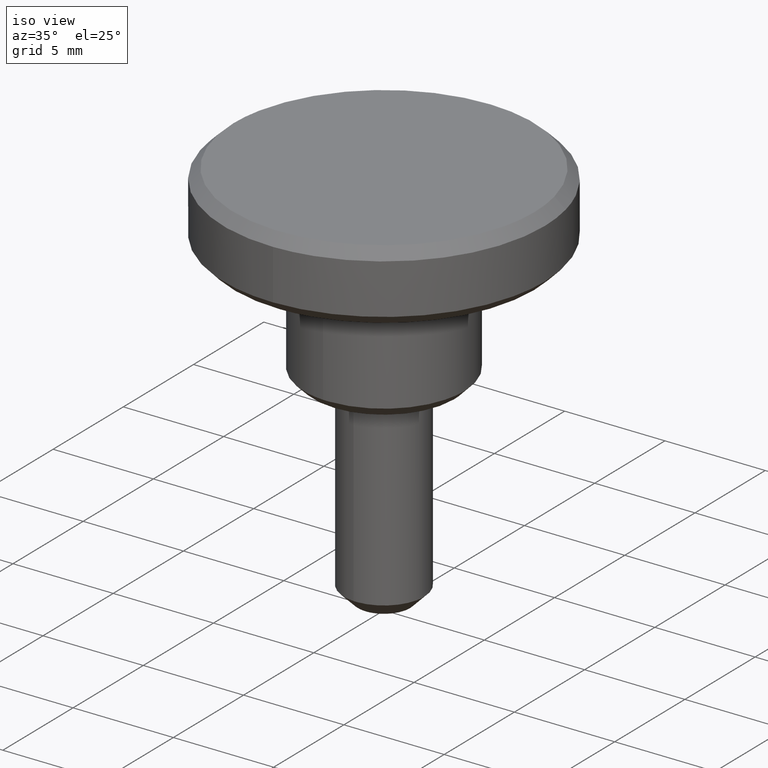
[diagram: clean part render]
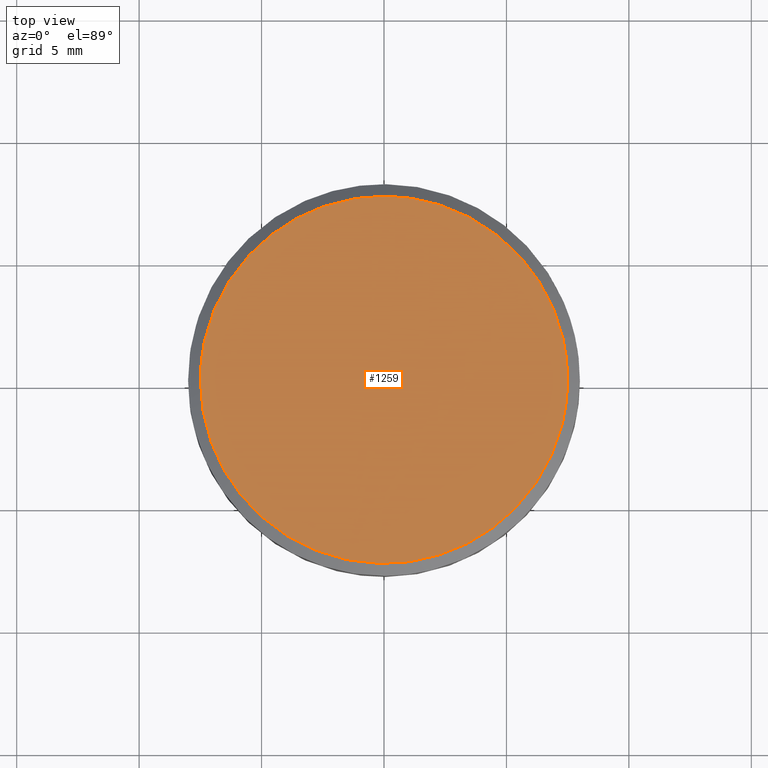
[diagram: tour spotlight — one face highlighted and labeled with its STEP entity id]
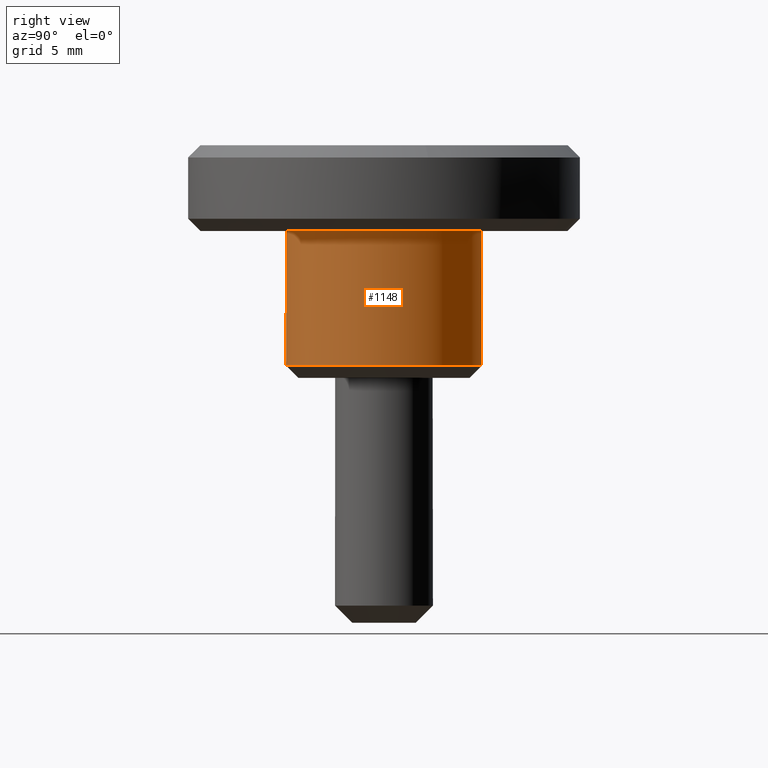
[diagram: tour spotlight — one face highlighted and labeled with its STEP entity id]
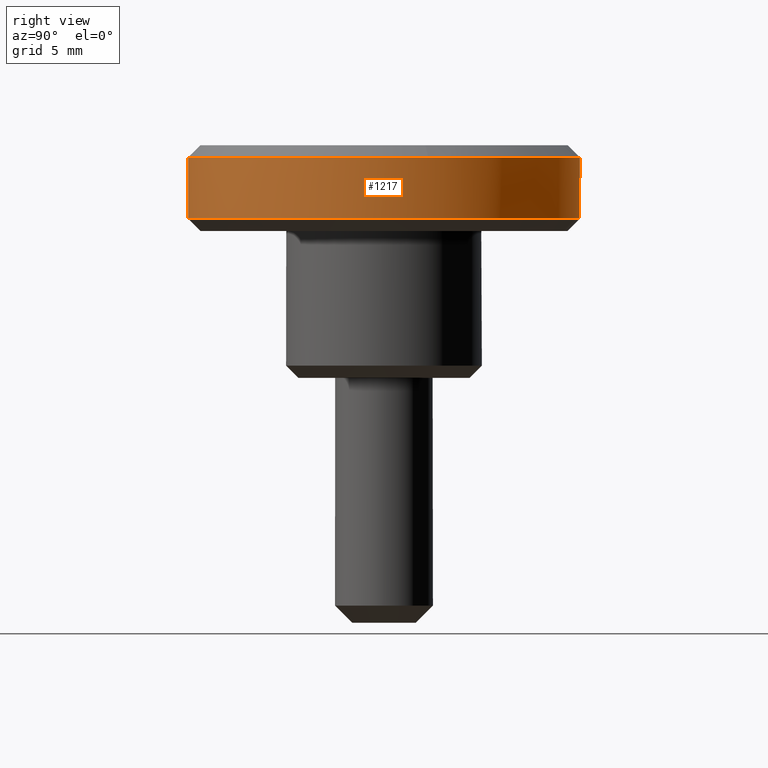
[diagram: tour spotlight — one face highlighted and labeled with its STEP entity id]
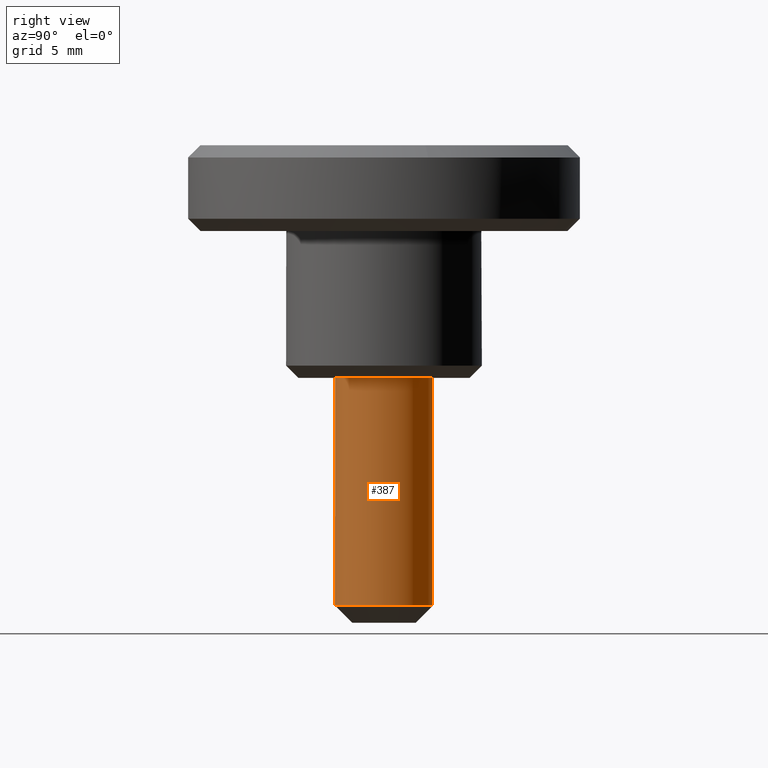
[diagram: tour spotlight — one face highlighted and labeled with its STEP entity id]
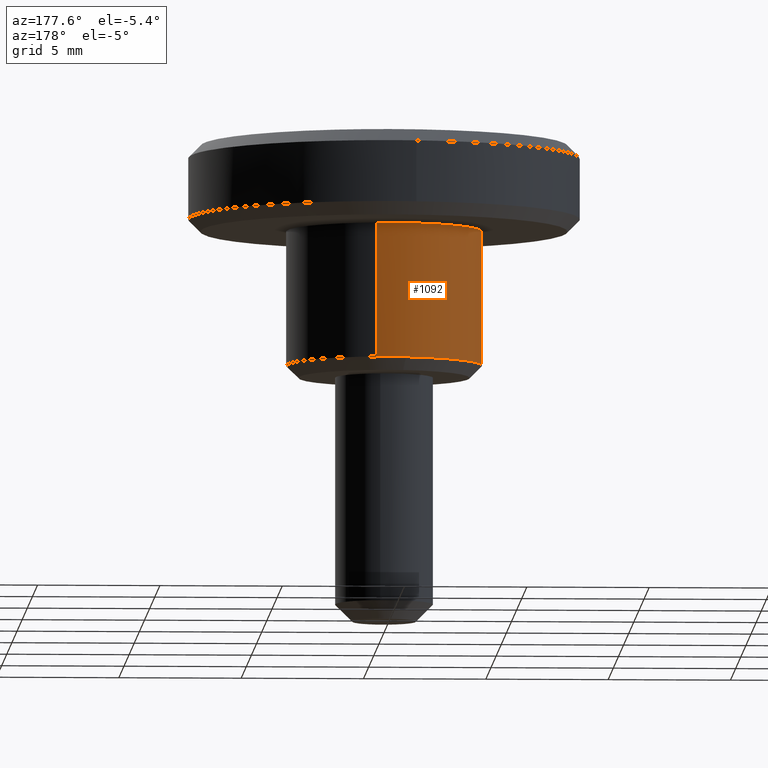
[diagram: tour spotlight — one face highlighted and labeled with its STEP entity id]
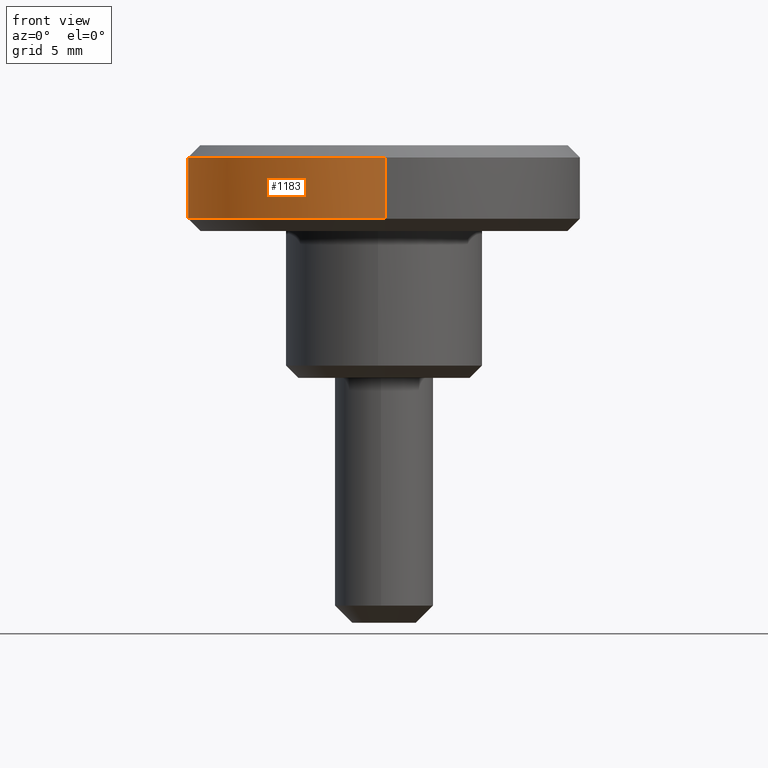
[diagram: tour spotlight — one face highlighted and labeled with its STEP entity id]
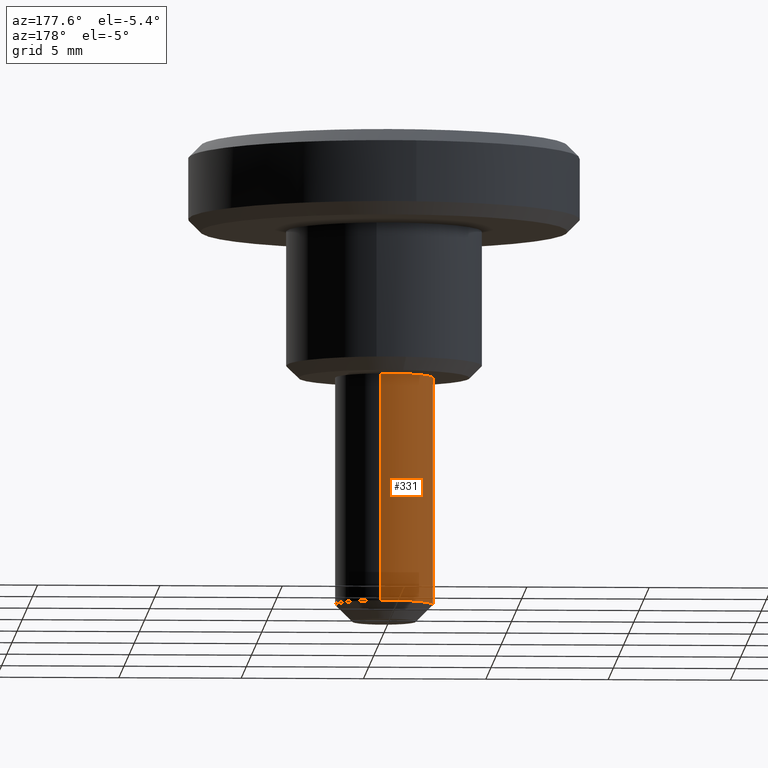
[diagram: tour spotlight — one face highlighted and labeled with its STEP entity id]
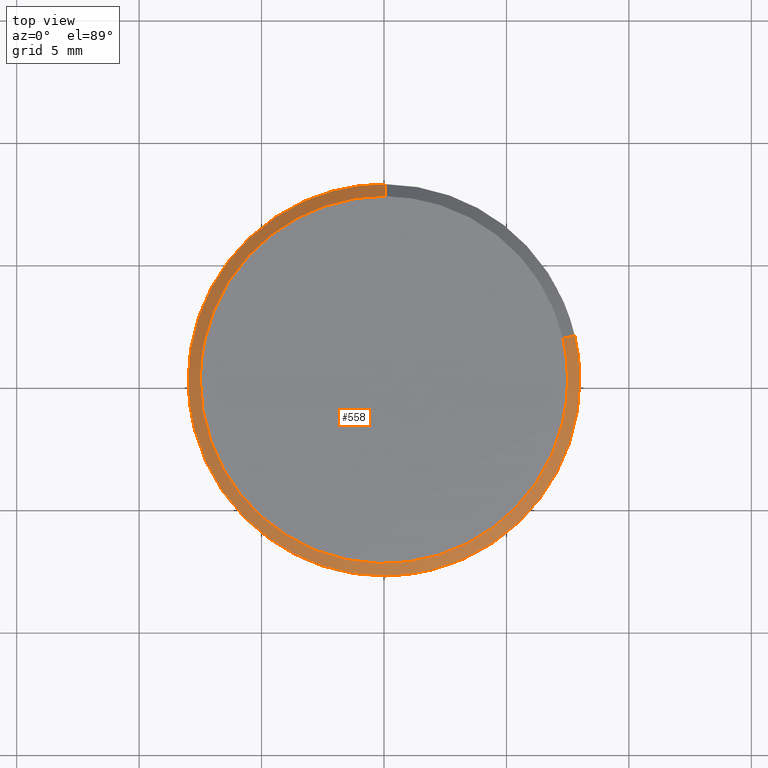
[diagram: tour spotlight — one face highlighted and labeled with its STEP entity id]
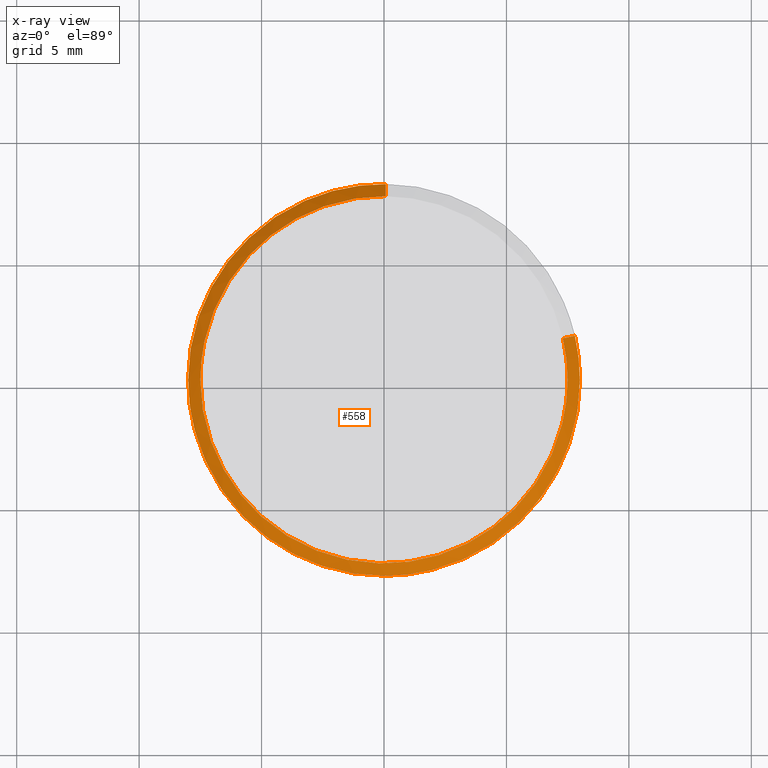
[diagram: x-ray of the same camera — body ghosted, this tour face saturated]
A machine part: a face-by-face anatomy tour. The part has 18 B-rep faces; the first image is the clean iso view, then the 8 largest visible faces are spotlighted one at a time (largest first), each with its STEP entity span.

Face 1 — top view, entity #1259. In plain terms, the highlighted face is a freeform B-spline surface patch.
Definition (entity closure, byte-faithful):
#431=CARTESIAN_POINT('',(7.306636148837393,1.692060338325327,9.499999999997934));
#432=VERTEX_POINT('',#431);
#438=CARTESIAN_POINT('',(7.500000000000000,0.0,9.500000000000000));
#439=VERTEX_POINT('',#438);
#440=CARTESIAN_POINT('',(7.500000000000000,0.0,9.500000000000000));
#441=CARTESIAN_POINT('',(7.500000000000000,0.857078705116250,9.500000000000000));
#442=CARTESIAN_POINT('',(7.306636148837394,1.692060338325327,9.499999999997934));
#450=(BOUNDED_CURVE()B_SPLINE_CURVE(2,(#440,#441,#442),.UNSPECIFIED.,.F.,.U.)B_SPLINE_CURVE_WITH_KNOTS((3,3),(0.500000000000000,0.538577028216173),.UNSPECIFIED.)CURVE()GEOMETRIC_REPRESENTATION_ITEM()RATIONAL_B_SPLINE_CURVE((1.0,0.954804200134030,0.923556557441517))REPRESENTATION_ITEM(''));
#451=EDGE_CURVE('',#439,#432,#450,.T.);
#453=CARTESIAN_POINT('',(-7.500000000000000,0.0,9.500000000000000));
#454=VERTEX_POINT('',#453);
#455=CARTESIAN_POINT('',(-7.500000000000000,0.0,9.500000000000000));
#456=CARTESIAN_POINT('',(-7.500000000000000,-7.500000000000000,9.500000000000000));
#457=CARTESIAN_POINT('',(0.0,-7.500000000000000,9.500000000000000));
#458=CARTESIAN_POINT('',(7.500000000000000,-7.500000000000000,9.500000000000000));
#459=CARTESIAN_POINT('',(7.500000000000000,0.0,9.500000000000000));
#467=(BOUNDED_CURVE()B_SPLINE_CURVE(2,(#455,#456,#457,#458,#459),.UNSPECIFIED.,.F.,.U.)B_SPLINE_CURVE_WITH_KNOTS((3,2,3),(0.0,0.250000000000000,0.500000000000000),.UNSPECIFIED.)CURVE()GEOMETRIC_REPRESENTATION_ITEM()RATIONAL_B_SPLINE_CURVE((1.0,0.707106781186547,1.0,0.707106781186547,1.0))REPRESENTATION_ITEM(''));
#468=EDGE_CURVE('',#454,#439,#467,.T.);
#470=CARTESIAN_POINT('',(0.065449016255905,7.499714422983589,9.499999999997538));
#471=VERTEX_POINT('',#470);
#472=CARTESIAN_POINT('',(0.065449016255905,7.499714422983589,9.499999999997538));
#473=CARTESIAN_POINT('',(0.032725131173342,7.500000000000000,9.500000000000000));
#474=CARTESIAN_POINT('',(0.0,7.500000000000000,9.500000000000000));
#475=CARTESIAN_POINT('',(-7.500000000000000,7.500000000000000,9.500000000000000));
#476=CARTESIAN_POINT('',(-7.500000000000000,0.0,9.500000000000000));
#484=(BOUNDED_CURVE()B_SPLINE_CURVE(2,(#472,#473,#474,#475,#476),.UNSPECIFIED.,.F.,.U.)B_SPLINE_CURVE_WITH_KNOTS((3,2,3),(0.748460105664164,0.750000000000000,1.0),.UNSPECIFIED.)CURVE()GEOMETRIC_REPRESENTATION_ITEM()RATIONAL_B_SPLINE_CURVE((0.996414028098440,0.998195901565377,1.0,0.707106781186547,1.0))REPRESENTATION_ITEM(''));
#485=EDGE_CURVE('',#471,#454,#484,.T.);
#587=CARTESIAN_POINT('',(7.306636148837393,1.692060338325327,9.499999999997934));
#588=CARTESIAN_POINT('',(5.973648138608220,7.448154350330379,9.500000000000000));
#589=CARTESIAN_POINT('',(0.065449016255905,7.499714422983589,9.499999999997538));
#597=(BOUNDED_CURVE()B_SPLINE_CURVE(2,(#587,#588,#589),.UNSPECIFIED.,.F.,.U.)B_SPLINE_CURVE_WITH_KNOTS((3,3),(0.538577028216173,0.748460105664163),.UNSPECIFIED.)CURVE()GEOMETRIC_REPRESENTATION_ITEM()RATIONAL_B_SPLINE_CURVE((0.923556557441517,0.753549905437403,0.996414028098439))REPRESENTATION_ITEM(''));
#598=EDGE_CURVE('',#432,#471,#597,.T.);
#1248=CARTESIAN_POINT('',(-8.249249970927089,8.248950187996030,9.500000000000000));
#1249=CARTESIAN_POINT('',(8.249250373258443,8.248950187996030,9.500000000000000));
#1250=CARTESIAN_POINT('',(-8.249249970927089,-8.249236111477019,9.500000000000000));
#1251=CARTESIAN_POINT('',(8.249250373258443,-8.249236111477019,9.500000000000000));
#1252=B_SPLINE_SURFACE_WITH_KNOTS('',1,1,((#1248,#1250),(#1249,#1251)),.UNSPECIFIED.,.F.,.F.,.U.,(2,2),(2,2),(0.0,16.498500344185530),(0.0,16.498186299473051),.UNSPECIFIED.);
#1253=ORIENTED_EDGE('',*,*,#468,.T.);
#1254=ORIENTED_EDGE('',*,*,#451,.T.);
#1255=ORIENTED_EDGE('',*,*,#598,.T.);
#1256=ORIENTED_EDGE('',*,*,#485,.T.);
#1257=EDGE_LOOP('',(#1253,#1254,#1255,#1256));
#1258=FACE_OUTER_BOUND('',#1257,.T.);
#1259=ADVANCED_FACE('',(#1258),#1252,.F.);

Face 2 — right view, entity #1148. In plain terms, the highlighted face is a freeform B-spline surface patch.
Definition (entity closure, byte-faithful):
#879=CARTESIAN_POINT('',(0.034906143496061,-3.999847692853440,0.500000000609875));
#880=VERTEX_POINT('',#879);
#886=CARTESIAN_POINT('',(-0.244191056338046,-3.992539383399263,0.499999999999933));
#887=VERTEX_POINT('',#886);
#888=CARTESIAN_POINT('',(-0.244191056338046,-3.992539383399263,0.499999999999933));
#889=CARTESIAN_POINT('',(-0.122209497945183,-3.999999999999915,0.499999999999945));
#890=CARTESIAN_POINT('',(0.0,-3.999999999999915,0.499999999999945));
#891=CARTESIAN_POINT('',(0.017453404780140,-3.999999999999916,0.499999999999945));
#892=CARTESIAN_POINT('',(0.034906143496061,-3.999847692853441,0.500000000609875));
#900=(BOUNDED_CURVE()B_SPLINE_CURVE(2,(#888,#889,#890,#891,#892),.UNSPECIFIED.,.F.,.U.)B_SPLINE_CURVE_WITH_KNOTS((3,2,3),(0.739333096293482,0.750000000000000,0.751539894466857),.UNSPECIFIED.)CURVE()GEOMETRIC_REPRESENTATION_ITEM()RATIONAL_B_SPLINE_CURVE((0.976072328971282,0.987502944954500,1.0,0.998195901411877,0.996414027795222))REPRESENTATION_ITEM(''));
#901=EDGE_CURVE('',#887,#880,#900,.T.);
#941=CARTESIAN_POINT('',(0.472136242154244,3.972038188240805,0.499999999999946));
#942=VERTEX_POINT('',#941);
#958=CARTESIAN_POINT('',(3.999999999999915,0.0,0.499999999999945));
#959=VERTEX_POINT('',#958);
#960=CARTESIAN_POINT('',(3.999999999999915,0.0,0.499999999999945));
#961=CARTESIAN_POINT('',(3.999999999999916,3.552699358464333,0.499999999999945));
#962=CARTESIAN_POINT('',(0.472136242154244,3.972038188240805,0.499999999999946));
#970=(BOUNDED_CURVE()B_SPLINE_CURVE(2,(#960,#961,#962),.UNSPECIFIED.,.F.,.U.)B_SPLINE_CURVE_WITH_KNOTS((3,3),(0.0,0.229562532783035),.UNSPECIFIED.)CURVE()GEOMETRIC_REPRESENTATION_ITEM()RATIONAL_B_SPLINE_CURVE((1.0,0.731050763416832,0.956026870354431))REPRESENTATION_ITEM(''));
#971=EDGE_CURVE('',#959,#942,#970,.T.);
#973=CARTESIAN_POINT('',(0.034906143496061,-3.999847692853441,0.500000000609875));
#974=CARTESIAN_POINT('',(3.999999999999914,-3.965244839411134,0.499999999999945));
#975=CARTESIAN_POINT('',(3.999999999999915,0.0,0.499999999999945));
#983=(BOUNDED_CURVE()B_SPLINE_CURVE(2,(#973,#974,#975),.UNSPECIFIED.,.F.,.U.)B_SPLINE_CURVE_WITH_KNOTS((3,3),(0.751539894466856,1.0),.UNSPECIFIED.)CURVE()GEOMETRIC_REPRESENTATION_ITEM()RATIONAL_B_SPLINE_CURVE((0.996414027795223,0.708910879774670,1.0))REPRESENTATION_ITEM(''));
#984=EDGE_CURVE('',#880,#959,#983,.T.);
#1046=CARTESIAN_POINT('',(-0.244191093747291,-3.992539381111274,6.0));
#1047=VERTEX_POINT('',#1046);
#1048=CARTESIAN_POINT('',(-0.244191056338046,-3.992539383399263,0.499999999999933));
#1049=CARTESIAN_POINT('',(-0.244191093747291,-3.992539381111274,6.0));
#1050=QUASI_UNIFORM_CURVE('',1,(#1048,#1049),.UNSPECIFIED.,.F.,.U.);
#1051=EDGE_CURVE('',#887,#1047,#1050,.T.);
#1068=CARTESIAN_POINT('',(0.472136250534668,3.972038187244667,6.0));
#1069=VERTEX_POINT('',#1068);
#1085=CARTESIAN_POINT('',(0.472136242154244,3.972038188240805,0.499999999999946));
#1086=CARTESIAN_POINT('',(0.472136250534668,3.972038187244667,6.0));
#1087=QUASI_UNIFORM_CURVE('',1,(#1085,#1086),.UNSPECIFIED.,.F.,.U.);
#1088=EDGE_CURVE('',#942,#1069,#1087,.T.);
#1093=CARTESIAN_POINT('',(-0.244194158139423,-3.992539193687382,0.362499999999943));
#1094=CARTESIAN_POINT('',(3.748345035547960,-4.236733351826805,0.362499999999943));
#1095=CARTESIAN_POINT('',(3.992539193687382,-0.244194158139423,0.362499999999943));
#1096=CARTESIAN_POINT('',(4.223144786930019,3.526173963357929,0.362499999999943));
#1097=CARTESIAN_POINT('',(0.472136938627024,3.972038105454581,0.362499999999944));
#1098=CARTESIAN_POINT('',(-0.244194158139423,-3.992539193687382,6.140937500000002));
#1099=CARTESIAN_POINT('',(3.748345035547960,-4.236733351826805,6.140937500000002));
#1100=CARTESIAN_POINT('',(3.992539193687382,-0.244194158139423,6.140937500000002));
#1101=CARTESIAN_POINT('',(4.223144786930019,3.526173963357929,6.140937500000002));
#1102=CARTESIAN_POINT('',(0.472136938627024,3.972038105454581,6.140937500000004));
#1110=(BOUNDED_SURFACE()B_SPLINE_SURFACE(2,1,((#1093,#1098),(#1094,#1099),(#1095,#1100),(#1096,#1101),(#1097,#1102)),.UNSPECIFIED.,.F.,.F.,.U.)B_SPLINE_SURFACE_WITH_KNOTS((3,2,3),(2,2),(0.0,6.627416997969378,12.989737316019980),(0.0,5.778437500000061),.UNSPECIFIED.)GEOMETRIC_REPRESENTATION_ITEM()RATIONAL_B_SPLINE_SURFACE(((1.0,1.0),(0.707106781186548,0.707106781186548),(1.0,1.0),(0.718822509939086,0.718822509939086),(0.977505800795127,0.977505800795127)))REPRESENTATION_ITEM('')SURFACE());
#1111=ORIENTED_EDGE('',*,*,#971,.T.);
#1112=ORIENTED_EDGE('',*,*,#1088,.T.);
#1113=CARTESIAN_POINT('',(3.999999999999915,0.0,6.0));
#1114=VERTEX_POINT('',#1113);
#1115=CARTESIAN_POINT('',(3.999999999999915,0.0,6.0));
#1116=CARTESIAN_POINT('',(3.999999999999916,3.552699343367440,6.0));
#1117=CARTESIAN_POINT('',(0.472136250534668,3.972038187244666,6.0));
#1125=(BOUNDED_CURVE()B_SPLINE_CURVE(2,(#1115,#1116,#1117),.UNSPECIFIED.,.F.,.U.)B_SPLINE_CURVE_WITH_KNOTS((3,3),(0.0,0.229562532069891),.UNSPECIFIED.)CURVE()GEOMETRIC_REPRESENTATION_ITEM()RATIONAL_B_SPLINE_CURVE((1.0,0.731050764252333,0.956026868956637))REPRESENTATION_ITEM(''));
#1126=EDGE_CURVE('',#1114,#1069,#1125,.T.);
#1127=ORIENTED_EDGE('',*,*,#1126,.F.);
#1128=CARTESIAN_POINT('',(-0.244191093747291,-3.992539381111274,6.0));
#1129=CARTESIAN_POINT('',(-0.122209516702248,-3.999999999999915,5.999999999999999));
#1130=CARTESIAN_POINT('',(0.0,-3.999999999999915,6.0));
#1131=CARTESIAN_POINT('',(3.999999999999915,-3.999999999999915,6.0));
#1132=CARTESIAN_POINT('',(3.999999999999915,0.0,6.0));
#1140=(BOUNDED_CURVE()B_SPLINE_CURVE(2,(#1128,#1129,#1130,#1131,#1132),.UNSPECIFIED.,.F.,.U.)B_SPLINE_CURVE_WITH_KNOTS((3,2,3),(0.739333094676755,0.750000000000000,1.0),.UNSPECIFIED.)CURVE()GEOMETRIC_REPRESENTATION_ITEM()RATIONAL_B_SPLINE_CURVE((0.976072325506324,0.987502943060386,1.0,0.707106781186547,1.0))REPRESENTATION_ITEM(''));
#1141=EDGE_CURVE('',#1047,#1114,#1140,.T.);
#1142=ORIENTED_EDGE('',*,*,#1141,.F.);
#1143=ORIENTED_EDGE('',*,*,#1051,.F.);
#1144=ORIENTED_EDGE('',*,*,#901,.T.);
#1145=ORIENTED_EDGE('',*,*,#984,.T.);
#1146=EDGE_LOOP('',(#1111,#1112,#1127,#1142,#1143,#1144,#1145));
#1147=FACE_OUTER_BOUND('',#1146,.T.);
#1148=ADVANCED_FACE('',(#1147),#1110,.T.);

Face 3 — right view, entity #1217. In plain terms, the highlighted face is a freeform B-spline surface patch.
Definition (entity closure, byte-faithful):
#414=CARTESIAN_POINT('',(7.793745225428451,1.804864360863774,8.999999999999716));
#415=VERTEX_POINT('',#414);
#416=CARTESIAN_POINT('',(8.0,0.0,9.0));
#417=VERTEX_POINT('',#416);
#418=CARTESIAN_POINT('',(7.793745225428451,1.804864360863774,8.999999999999716));
#419=CARTESIAN_POINT('',(8.0,0.914217285440538,9.000000000000002));
#420=CARTESIAN_POINT('',(8.0,0.0,9.0));
#428=(BOUNDED_CURVE()B_SPLINE_CURVE(2,(#418,#419,#420),.UNSPECIFIED.,.F.,.U.)B_SPLINE_CURVE_WITH_KNOTS((3,3),(0.961422971784503,1.0),.UNSPECIFIED.)CURVE()GEOMETRIC_REPRESENTATION_ITEM()RATIONAL_B_SPLINE_CURVE((0.923556557442613,0.954804200134823,1.0))REPRESENTATION_ITEM(''));
#429=EDGE_CURVE('',#415,#417,#428,.T.);
#487=CARTESIAN_POINT('',(0.069812284012937,7.999695384516684,8.999999999996486));
#488=VERTEX_POINT('',#487);
#494=CARTESIAN_POINT('',(-0.993019672289672,7.938130254060242,8.999999999999979));
#495=VERTEX_POINT('',#494);
#496=CARTESIAN_POINT('',(-0.993019672289672,7.938130254060242,8.999999999999979));
#497=CARTESIAN_POINT('',(-0.498437222665701,8.0,9.0));
#498=CARTESIAN_POINT('',(0.0,8.0,9.0));
#499=CARTESIAN_POINT('',(0.034906806591514,8.0,8.999999999999998));
#500=CARTESIAN_POINT('',(0.069812284012937,7.999695384516684,8.999999999996486));
#508=(BOUNDED_CURVE()B_SPLINE_CURVE(2,(#496,#497,#498,#499,#500),.UNSPECIFIED.,.F.,.U.)B_SPLINE_CURVE_WITH_KNOTS((3,2,3),(0.728526163325193,0.750000000000000,0.751539894336128),.UNSPECIFIED.)CURVE()GEOMETRIC_REPRESENTATION_ITEM()RATIONAL_B_SPLINE_CURVE((0.954005609385446,0.974841835424165,1.0,0.998195901565036,0.996414028097766))REPRESENTATION_ITEM(''));
#509=EDGE_CURVE('',#495,#488,#508,.T.);
#526=CARTESIAN_POINT('',(0.069806298894195,-7.999695436740004,9.000000000000018));
#527=VERTEX_POINT('',#526);
#543=CARTESIAN_POINT('',(8.0,0.0,9.0));
#544=CARTESIAN_POINT('',(8.0,-7.930495618303428,9.0));
#545=CARTESIAN_POINT('',(0.069806298894195,-7.999695436740004,9.000000000000018));
#553=(BOUNDED_CURVE()B_SPLINE_CURVE(2,(#543,#544,#545),.UNSPECIFIED.,.F.,.U.)B_SPLINE_CURVE_WITH_KNOTS((3,3),(0.0,0.248460237448910),.UNSPECIFIED.)CURVE()GEOMETRIC_REPRESENTATION_ITEM()RATIONAL_B_SPLINE_CURVE((1.0,0.708910725225736,0.996414333085429))REPRESENTATION_ITEM(''));
#554=EDGE_CURVE('',#417,#527,#553,.T.);
#573=CARTESIAN_POINT('',(0.069812284012937,7.999695384516684,8.999999999996486));
#574=CARTESIAN_POINT('',(6.371891347878014,7.944697973675051,9.0));
#575=CARTESIAN_POINT('',(7.793745225428451,1.804864360863774,8.999999999999716));
#583=(BOUNDED_CURVE()B_SPLINE_CURVE(2,(#573,#574,#575),.UNSPECIFIED.,.F.,.U.)B_SPLINE_CURVE_WITH_KNOTS((3,3),(0.751539894336128,0.961422971784502),.UNSPECIFIED.)CURVE()GEOMETRIC_REPRESENTATION_ITEM()RATIONAL_B_SPLINE_CURVE((0.996414028097765,0.753549905436857,0.923556557442612))REPRESENTATION_ITEM(''));
#584=EDGE_CURVE('',#488,#415,#583,.T.);
#626=CARTESIAN_POINT('',(3.233723455905443,7.317310476584305,6.500000000000218));
#627=VERTEX_POINT('',#626);
#628=CARTESIAN_POINT('',(-0.993020557150740,7.938130143369020,6.500000000000000));
#629=VERTEX_POINT('',#628);
#630=CARTESIAN_POINT('',(3.233723455905442,7.317310476584305,6.500000000000218));
#631=CARTESIAN_POINT('',(1.688924938017753,8.0,6.500000000000000));
#632=CARTESIAN_POINT('',(0.0,8.0,6.500000000000000));
#633=CARTESIAN_POINT('',(-0.498437670275357,8.0,6.499999999999999));
#634=CARTESIAN_POINT('',(-0.993020557150740,7.938130143369020,6.500000000000000));
#642=(BOUNDED_CURVE()B_SPLINE_CURVE(2,(#630,#631,#632,#633,#634),.UNSPECIFIED.,.F.,.U.)B_SPLINE_CURVE_WITH_KNOTS((3,2,3),(0.181361578459833,0.250000000000000,0.271473855473722),.UNSPECIFIED.)CURVE()GEOMETRIC_REPRESENTATION_ITEM()RATIONAL_B_SPLINE_CURVE((0.883326595751779,0.919585087123303,1.0,0.974841813399867,0.954005572903991))REPRESENTATION_ITEM(''));
#643=EDGE_CURVE('',#627,#629,#642,.T.);
#686=CARTESIAN_POINT('',(0.069809143826576,-7.999695411913436,6.499999999998768));
#687=VERTEX_POINT('',#686);
#744=CARTESIAN_POINT('',(8.0,0.0,6.500000000000000));
#745=VERTEX_POINT('',#744);
#746=CARTESIAN_POINT('',(8.0,0.0,6.500000000000000));
#747=CARTESIAN_POINT('',(8.0,5.210960020729336,6.500000000000000));
#748=CARTESIAN_POINT('',(3.233723455905442,7.317310476584305,6.500000000000218));
#756=(BOUNDED_CURVE()B_SPLINE_CURVE(2,(#746,#747,#748),.UNSPECIFIED.,.F.,.U.)B_SPLINE_CURVE_WITH_KNOTS((3,3),(0.0,0.181361578459833),.UNSPECIFIED.)CURVE()GEOMETRIC_REPRESENTATION_ITEM()RATIONAL_B_SPLINE_CURVE((1.0,0.787521694063244,0.883326595751779))REPRESENTATION_ITEM(''));
#757=EDGE_CURVE('',#745,#627,#756,.T.);
#759=CARTESIAN_POINT('',(0.069809143826576,-7.999695411913436,6.499999999998768));
#760=CARTESIAN_POINT('',(8.0,-7.930492797873697,6.500000000000000));
#761=CARTESIAN_POINT('',(8.0,0.0,6.500000000000000));
#769=(BOUNDED_CURVE()B_SPLINE_CURVE(2,(#759,#760,#761),.UNSPECIFIED.,.F.,.U.)B_SPLINE_CURVE_WITH_KNOTS((3,3),(0.751539825192777,1.0),.UNSPECIFIED.)CURVE()GEOMETRIC_REPRESENTATION_ITEM()RATIONAL_B_SPLINE_CURVE((0.996414188114897,0.708910798615037,1.0))REPRESENTATION_ITEM(''));
#770=EDGE_CURVE('',#687,#745,#769,.T.);
#1168=CARTESIAN_POINT('',(-0.993020557150740,7.938130143369020,6.500000000000000));
#1169=CARTESIAN_POINT('',(-0.993019672289672,7.938130254060242,8.999999999999979));
#1170=QUASI_UNIFORM_CURVE('',1,(#1168,#1169),.UNSPECIFIED.,.F.,.U.);
#1171=EDGE_CURVE('',#629,#495,#1170,.T.);
#1175=CARTESIAN_POINT('',(0.069809143826576,-7.999695411913436,6.499999999998768));
#1176=CARTESIAN_POINT('',(0.069806298894195,-7.999695436740004,9.000000000000018));
#1177=QUASI_UNIFORM_CURVE('',1,(#1175,#1176),.UNSPECIFIED.,.F.,.U.);
#1178=EDGE_CURVE('',#687,#527,#1177,.T.);
#1184=CARTESIAN_POINT('',(0.069812283986991,-7.999695384513368,6.437499999999999));
#1185=CARTESIAN_POINT('',(8.069507668500359,-7.929883100526377,6.437499999999999));
#1186=CARTESIAN_POINT('',(7.999695384513368,0.069812283986991,6.437499999999999));
#1187=CARTESIAN_POINT('',(7.929883100526377,8.069507668500359,6.437499999999999));
#1188=CARTESIAN_POINT('',(-0.069812283986991,7.999695384513368,6.437499999999999));
#1189=CARTESIAN_POINT('',(-0.533201271665389,7.995651450082205,6.437499999999998));
#1190=CARTESIAN_POINT('',(-0.993024016638634,7.938129710604309,6.437499999999999));
#1191=CARTESIAN_POINT('',(0.069812283986991,-7.999695384513368,9.064062500000002));
#1192=CARTESIAN_POINT('',(8.069507668500359,-7.929883100526377,9.064062500000002));
#1193=CARTESIAN_POINT('',(7.999695384513368,0.069812283986991,9.064062500000002));
#1194=CARTESIAN_POINT('',(7.929883100526377,8.069507668500359,9.064062500000002));
#1195=CARTESIAN_POINT('',(-0.069812283986991,7.999695384513368,9.064062500000002));
#1196=CARTESIAN_POINT('',(-0.533201271665389,7.995651450082205,9.064062500000002));
#1197=CARTESIAN_POINT('',(-0.993024016638634,7.938129710604309,9.064062500000002));
#1205=(BOUNDED_SURFACE()B_SPLINE_SURFACE(2,1,((#1184,#1191),(#1185,#1192),(#1186,#1193),(#1187,#1194),(#1188,#1195),(#1189,#1196),(#1190,#1197)),.UNSPECIFIED.,.F.,.F.,.U.)B_SPLINE_SURFACE_WITH_KNOTS((3,2,2,3),(2,2),(0.0,13.254833995939039,26.509667991878079,27.570054711553201),(0.0,2.626562500000004),.UNSPECIFIED.)GEOMETRIC_REPRESENTATION_ITEM()RATIONAL_B_SPLINE_SURFACE(((1.0,1.0),(0.707106781186548,0.707106781186548),(1.0,1.0),(0.707106781186548,0.707106781186548),(1.0,1.0),(0.976568542494924,0.976568542494924),(0.956886118190660,0.956886118190660)))REPRESENTATION_ITEM('')SURFACE());
#1206=ORIENTED_EDGE('',*,*,#509,.T.);
#1207=ORIENTED_EDGE('',*,*,#584,.T.);
#1208=ORIENTED_EDGE('',*,*,#429,.T.);
#1209=ORIENTED_EDGE('',*,*,#554,.T.);
#1210=ORIENTED_EDGE('',*,*,#1178,.F.);
#1211=ORIENTED_EDGE('',*,*,#770,.T.);
#1212=ORIENTED_EDGE('',*,*,#757,.T.);
#1213=ORIENTED_EDGE('',*,*,#643,.T.);
#1214=ORIENTED_EDGE('',*,*,#1171,.T.);
#1215=EDGE_LOOP('',(#1206,#1207,#1208,#1209,#1210,#1211,#1212,#1213,#1214));
#1216=FACE_OUTER_BOUND('',#1215,.T.);
#1217=ADVANCED_FACE('',(#1216),#1205,.T.);

Face 4 — right view, entity #387. In plain terms, the highlighted face is a freeform B-spline surface patch.
Definition (entity closure, byte-faithful):
#118=CARTESIAN_POINT('',(0.017453071073165,-1.999923846138014,-9.299999999989328));
#119=VERTEX_POINT('',#118);
#125=CARTESIAN_POINT('',(-0.122097079089674,-1.996269596842428,-9.299999999999750));
#126=VERTEX_POINT('',#125);
#127=CARTESIAN_POINT('',(-0.122097079089674,-1.996269596842428,-9.299999999999750));
#128=CARTESIAN_POINT('',(-0.061105526617197,-1.999999999999915,-9.299999999999750));
#129=CARTESIAN_POINT('',(0.0,-1.999999999999915,-9.299999999999750));
#130=CARTESIAN_POINT('',(0.008726701717733,-1.999999999999915,-9.299999999999749));
#131=CARTESIAN_POINT('',(0.017453071073165,-1.999923846138014,-9.299999999989328));
#139=(BOUNDED_CURVE()B_SPLINE_CURVE(2,(#127,#128,#129,#130,#131),.UNSPECIFIED.,.F.,.U.)B_SPLINE_CURVE_WITH_KNOTS((3,2,3),(0.739332962238517,0.750000000000000,0.751539894348432),.UNSPECIFIED.)CURVE()GEOMETRIC_REPRESENTATION_ITEM()RATIONAL_B_SPLINE_CURVE((0.976072041665805,0.987502787899338,1.0,0.998195901550621,0.996414028069291))REPRESENTATION_ITEM(''));
#140=EDGE_CURVE('',#126,#119,#139,.T.);
#180=CARTESIAN_POINT('',(0.236068469329334,1.986019052725367,-9.299999999999750));
#181=VERTEX_POINT('',#180);
#197=CARTESIAN_POINT('',(1.999999999999915,0.0,-9.299999999999750));
#198=VERTEX_POINT('',#197);
#199=CARTESIAN_POINT('',(1.999999999999915,0.0,-9.299999999999750));
#200=CARTESIAN_POINT('',(1.999999999999915,1.776349051874147,-9.299999999999752));
#201=CARTESIAN_POINT('',(0.236068469329334,1.986019052725367,-9.299999999999750));
#209=(BOUNDED_CURVE()B_SPLINE_CURVE(2,(#199,#200,#201),.UNSPECIFIED.,.F.,.U.)B_SPLINE_CURVE_WITH_KNOTS((3,3),(0.0,0.229562473512951),.UNSPECIFIED.)CURVE()GEOMETRIC_REPRESENTATION_ITEM()RATIONAL_B_SPLINE_CURVE((1.0,0.731050832856056,0.956026754182606))REPRESENTATION_ITEM(''));
#210=EDGE_CURVE('',#198,#181,#209,.T.);
#212=CARTESIAN_POINT('',(0.017453071073165,-1.999923846138015,-9.299999999989328));
#213=CARTESIAN_POINT('',(1.999999999999915,-1.982622421038533,-9.299999999999749));
#214=CARTESIAN_POINT('',(1.999999999999915,0.0,-9.299999999999750));
#222=(BOUNDED_CURVE()B_SPLINE_CURVE(2,(#212,#213,#214),.UNSPECIFIED.,.F.,.U.)B_SPLINE_CURVE_WITH_KNOTS((3,3),(0.751539894348432,1.0),.UNSPECIFIED.)CURVE()GEOMETRIC_REPRESENTATION_ITEM()RATIONAL_B_SPLINE_CURVE((0.996414028069290,0.708910879635927,1.0))REPRESENTATION_ITEM(''));
#223=EDGE_CURVE('',#119,#198,#222,.T.);
#285=CARTESIAN_POINT('',(-0.122097079089674,-1.996269596842428,2.775558E-017));
#286=VERTEX_POINT('',#285);
#287=CARTESIAN_POINT('',(-0.122097079089674,-1.996269596842428,-9.299999999999750));
#288=CARTESIAN_POINT('',(-0.122097079089674,-1.996269596842428,2.775558E-017));
#289=QUASI_UNIFORM_CURVE('',1,(#287,#288),.UNSPECIFIED.,.F.,.U.);
#290=EDGE_CURVE('',#126,#286,#289,.T.);
#307=CARTESIAN_POINT('',(0.236068469329334,1.986019052725367,1.419714E-017));
#308=VERTEX_POINT('',#307);
#324=CARTESIAN_POINT('',(0.236068469329334,1.986019052725367,-9.299999999999750));
#325=CARTESIAN_POINT('',(0.236068469329334,1.986019052725367,1.419714E-017));
#326=QUASI_UNIFORM_CURVE('',1,(#324,#325),.UNSPECIFIED.,.F.,.U.);
#327=EDGE_CURVE('',#181,#308,#326,.T.);
#332=CARTESIAN_POINT('',(-0.122097079069709,-1.996269596843649,-9.532499999999747));
#333=CARTESIAN_POINT('',(1.874172517773940,-2.118366675913357,-9.532499999999747));
#334=CARTESIAN_POINT('',(1.996269596843649,-0.122097079069709,-9.532499999999747));
#335=CARTESIAN_POINT('',(2.111572393464965,1.763086981678927,-9.532499999999747));
#336=CARTESIAN_POINT('',(0.236068469313507,1.986019052727249,-9.532499999999748));
#337=CARTESIAN_POINT('',(-0.122097079069709,-1.996269596843649,0.238312499999994));
#338=CARTESIAN_POINT('',(1.874172517773940,-2.118366675913357,0.238312499999994));
#339=CARTESIAN_POINT('',(1.996269596843649,-0.122097079069709,0.238312499999994));
#340=CARTESIAN_POINT('',(2.111572393464965,1.763086981678927,0.238312499999994));
#341=CARTESIAN_POINT('',(0.236068469313507,1.986019052727249,0.238312499999994));
#349=(BOUNDED_SURFACE()B_SPLINE_SURFACE(2,1,((#332,#337),(#333,#338),(#334,#339),(#335,#340),(#336,#341)),.UNSPECIFIED.,.F.,.F.,.U.)B_SPLINE_SURFACE_WITH_KNOTS((3,2,3),(2,2),(0.0,3.313708498984619,6.494868658009852),(0.0,9.770812499999742),.UNSPECIFIED.)GEOMETRIC_REPRESENTATION_ITEM()RATIONAL_B_SPLINE_SURFACE(((1.0,1.0),(0.707106781186548,0.707106781186548),(1.0,1.0),(0.718822509939086,0.718822509939086),(0.977505800795127,0.977505800795127)))REPRESENTATION_ITEM('')SURFACE());
#350=ORIENTED_EDGE('',*,*,#210,.T.);
#351=ORIENTED_EDGE('',*,*,#327,.T.);
#352=CARTESIAN_POINT('',(1.999999999999915,0.0,0.0));
#353=VERTEX_POINT('',#352);
#354=CARTESIAN_POINT('',(1.999999999999915,0.0,0.0));
#355=CARTESIAN_POINT('',(1.999999999999915,1.776349051874147,0.0));
#356=CARTESIAN_POINT('',(0.236068469329334,1.986019052725367,1.419714E-017));
#364=(BOUNDED_CURVE()B_SPLINE_CURVE(2,(#354,#355,#356),.UNSPECIFIED.,.F.,.U.)B_SPLINE_CURVE_WITH_KNOTS((3,3),(0.0,0.229562473512951),.UNSPECIFIED.)CURVE()GEOMETRIC_REPRESENTATION_ITEM()RATIONAL_B_SPLINE_CURVE((1.0,0.731050832856056,0.956026754182606))REPRESENTATION_ITEM(''));
#365=EDGE_CURVE('',#353,#308,#364,.T.);
#366=ORIENTED_EDGE('',*,*,#365,.F.);
#367=CARTESIAN_POINT('',(-0.122097079089674,-1.996269596842428,2.775558E-017));
#368=CARTESIAN_POINT('',(-0.061105526617197,-1.999999999999915,0.0));
#369=CARTESIAN_POINT('',(0.0,-1.999999999999915,0.0));
#370=CARTESIAN_POINT('',(1.999999999999915,-1.999999999999915,0.0));
#371=CARTESIAN_POINT('',(1.999999999999915,0.0,0.0));
#379=(BOUNDED_CURVE()B_SPLINE_CURVE(2,(#367,#368,#369,#370,#371),.UNSPECIFIED.,.F.,.U.)B_SPLINE_CURVE_WITH_KNOTS((3,2,3),(0.739332962238517,0.750000000000000,1.0),.UNSPECIFIED.)CURVE()GEOMETRIC_REPRESENTATION_ITEM()RATIONAL_B_SPLINE_CURVE((0.976072041665805,0.987502787899338,1.0,0.707106781186548,1.0))REPRESENTATION_ITEM(''));
#380=EDGE_CURVE('',#286,#353,#379,.T.);
#381=ORIENTED_EDGE('',*,*,#380,.F.);
#382=ORIENTED_EDGE('',*,*,#290,.F.);
#383=ORIENTED_EDGE('',*,*,#140,.T.);
#384=ORIENTED_EDGE('',*,*,#223,.T.);
#385=EDGE_LOOP('',(#350,#351,#366,#381,#382,#383,#384));
#386=FACE_OUTER_BOUND('',#385,.T.);
#387=ADVANCED_FACE('',(#386),#349,.T.);

Face 5 — auxiliary view, entity #1092. In plain terms, the highlighted face is a freeform B-spline surface patch.
Definition (entity closure, byte-faithful):
#823=CARTESIAN_POINT('',(-0.732494484874874,3.932359535827230,0.499999961172962));
#824=VERTEX_POINT('',#823);
#825=CARTESIAN_POINT('',(-3.999999999999915,0.0,0.499999999999945));
#826=VERTEX_POINT('',#825);
#827=CARTESIAN_POINT('',(-0.732494484874874,3.932359535827230,0.499999961172962));
#828=CARTESIAN_POINT('',(-3.999999999999915,3.323709815139513,0.499999999999945));
#829=CARTESIAN_POINT('',(-3.999999999999915,0.0,0.499999999999945));
#837=(BOUNDED_CURVE()B_SPLINE_CURVE(2,(#827,#828,#829),.UNSPECIFIED.,.F.,.U.)B_SPLINE_CURVE_WITH_KNOTS((3,3),(0.281445261705507,0.500000000000000),.UNSPECIFIED.)CURVE()GEOMETRIC_REPRESENTATION_ITEM()RATIONAL_B_SPLINE_CURVE((0.935586820757660,0.743947196855977,1.0))REPRESENTATION_ITEM(''));
#838=EDGE_CURVE('',#824,#826,#837,.T.);
#886=CARTESIAN_POINT('',(-0.244191056338046,-3.992539383399263,0.499999999999933));
#887=VERTEX_POINT('',#886);
#903=CARTESIAN_POINT('',(-3.999999999999915,0.0,0.499999999999945));
#904=CARTESIAN_POINT('',(-3.999999999999916,-3.762827196422415,0.499999999999945));
#905=CARTESIAN_POINT('',(-0.244191056338046,-3.992539383399263,0.499999999999933));
#913=(BOUNDED_CURVE()B_SPLINE_CURVE(2,(#903,#904,#905),.UNSPECIFIED.,.F.,.U.)B_SPLINE_CURVE_WITH_KNOTS((3,3),(0.500000000000000,0.739333096293482),.UNSPECIFIED.)CURVE()GEOMETRIC_REPRESENTATION_ITEM()RATIONAL_B_SPLINE_CURVE((1.0,0.719603836232048,0.976072328971282))REPRESENTATION_ITEM(''));
#914=EDGE_CURVE('',#826,#887,#913,.T.);
#941=CARTESIAN_POINT('',(0.472136242154244,3.972038188240805,0.499999999999946));
#942=VERTEX_POINT('',#941);
#943=CARTESIAN_POINT('',(0.472136242154244,3.972038188240805,0.499999999999946));
#944=CARTESIAN_POINT('',(0.236895774771856,3.999999999999915,0.499999999999945));
#945=CARTESIAN_POINT('',(0.0,3.999999999999915,0.499999999999945));
#946=CARTESIAN_POINT('',(-0.369370279233281,3.999999999999915,0.499999999999945));
#947=CARTESIAN_POINT('',(-0.732494484874874,3.932359535827229,0.499999961172962));
#955=(BOUNDED_CURVE()B_SPLINE_CURVE(2,(#943,#944,#945,#946,#947),.UNSPECIFIED.,.F.,.U.)B_SPLINE_CURVE_WITH_KNOTS((3,2,3),(0.229562532783036,0.250000000000000,0.281445261705508),.UNSPECIFIED.)CURVE()GEOMETRIC_REPRESENTATION_ITEM()RATIONAL_B_SPLINE_CURVE((0.956026870354431,0.976056017769715,1.0,0.963159584330570,0.935586820757659))REPRESENTATION_ITEM(''));
#956=EDGE_CURVE('',#942,#824,#955,.T.);
#1021=CARTESIAN_POINT('',(0.472136938627024,3.972038105454581,0.362499999999944));
#1022=CARTESIAN_POINT('',(0.358458914551903,3.985550461794337,0.362499999999944));
#1023=CARTESIAN_POINT('',(0.244194158139423,3.992539193687382,0.362499999999943));
#1024=CARTESIAN_POINT('',(-3.748345035547960,4.236733351826805,0.362499999999943));
#1025=CARTESIAN_POINT('',(-3.992539193687382,0.244194158139423,0.362499999999943));
#1026=CARTESIAN_POINT('',(-4.236733351826805,-3.748345035547960,0.362499999999943));
#1027=CARTESIAN_POINT('',(-0.244194158139423,-3.992539193687382,0.362499999999943));
#1028=CARTESIAN_POINT('',(0.472136938627024,3.972038105454581,6.140937500000004));
#1029=CARTESIAN_POINT('',(0.358458914551903,3.985550461794337,6.140937500000002));
#1030=CARTESIAN_POINT('',(0.244194158139423,3.992539193687382,6.140937500000002));
#1031=CARTESIAN_POINT('',(-3.748345035547960,4.236733351826805,6.140937500000002));
#1032=CARTESIAN_POINT('',(-3.992539193687382,0.244194158139423,6.140937500000002));
#1033=CARTESIAN_POINT('',(-4.236733351826805,-3.748345035547960,6.140937500000002));
#1034=CARTESIAN_POINT('',(-0.244194158139423,-3.992539193687382,6.140937500000002));
#1042=(BOUNDED_SURFACE()B_SPLINE_SURFACE(2,1,((#1021,#1028),(#1022,#1029),(#1023,#1030),(#1024,#1031),(#1025,#1032),(#1026,#1033),(#1027,#1034)),.UNSPECIFIED.,.F.,.F.,.U.)B_SPLINE_SURFACE_WITH_KNOTS((3,2,2,3),(2,2),(0.0,0.265096679918776,6.892513677888154,13.519930675857530),(0.0,5.778437500000059),.UNSPECIFIED.)GEOMETRIC_REPRESENTATION_ITEM()RATIONAL_B_SPLINE_SURFACE(((0.977505800795127,0.977505800795127),(0.988284271247462,0.988284271247462),(1.0,1.0),(0.707106781186548,0.707106781186548),(1.0,1.0),(0.707106781186548,0.707106781186548),(1.0,1.0)))REPRESENTATION_ITEM('')SURFACE());
#1043=ORIENTED_EDGE('',*,*,#956,.T.);
#1044=ORIENTED_EDGE('',*,*,#838,.T.);
#1045=ORIENTED_EDGE('',*,*,#914,.T.);
#1046=CARTESIAN_POINT('',(-0.244191093747291,-3.992539381111274,6.0));
#1047=VERTEX_POINT('',#1046);
#1048=CARTESIAN_POINT('',(-0.244191056338046,-3.992539383399263,0.499999999999933));
#1049=CARTESIAN_POINT('',(-0.244191093747291,-3.992539381111274,6.0));
#1050=QUASI_UNIFORM_CURVE('',1,(#1048,#1049),.UNSPECIFIED.,.F.,.U.);
#1051=EDGE_CURVE('',#887,#1047,#1050,.T.);
#1052=ORIENTED_EDGE('',*,*,#1051,.T.);
#1053=CARTESIAN_POINT('',(-3.999999999999915,0.0,6.0));
#1054=VERTEX_POINT('',#1053);
#1055=CARTESIAN_POINT('',(-3.999999999999915,0.0,6.0));
#1056=CARTESIAN_POINT('',(-3.999999999999916,-3.762827161099644,6.000000000000002));
#1057=CARTESIAN_POINT('',(-0.244191093747291,-3.992539381111274,6.0));
#1065=(BOUNDED_CURVE()B_SPLINE_CURVE(2,(#1055,#1056,#1057),.UNSPECIFIED.,.F.,.U.)B_SPLINE_CURVE_WITH_KNOTS((3,3),(0.500000000000000,0.739333094676755),.UNSPECIFIED.)CURVE()GEOMETRIC_REPRESENTATION_ITEM()RATIONAL_B_SPLINE_CURVE((1.0,0.719603838126161,0.976072325506324))REPRESENTATION_ITEM(''));
#1066=EDGE_CURVE('',#1054,#1047,#1065,.T.);
#1067=ORIENTED_EDGE('',*,*,#1066,.F.);
#1068=CARTESIAN_POINT('',(0.472136250534668,3.972038187244667,6.0));
#1069=VERTEX_POINT('',#1068);
#1070=CARTESIAN_POINT('',(0.472136250534668,3.972038187244666,6.0));
#1071=CARTESIAN_POINT('',(0.236895783240877,3.999999999999916,6.0));
#1072=CARTESIAN_POINT('',(0.0,3.999999999999915,6.0));
#1073=CARTESIAN_POINT('',(-3.999999999999915,3.999999999999915,6.0));
#1074=CARTESIAN_POINT('',(-3.999999999999915,0.0,6.0));
#1082=(BOUNDED_CURVE()B_SPLINE_CURVE(2,(#1070,#1071,#1072,#1073,#1074),.UNSPECIFIED.,.F.,.U.)B_SPLINE_CURVE_WITH_KNOTS((3,2,3),(0.229562532069891,0.250000000000000,0.500000000000000),.UNSPECIFIED.)CURVE()GEOMETRIC_REPRESENTATION_ITEM()RATIONAL_B_SPLINE_CURVE((0.956026868956637,0.976056016934214,1.0,0.707106781186547,1.0))REPRESENTATION_ITEM(''));
#1083=EDGE_CURVE('',#1069,#1054,#1082,.T.);
#1084=ORIENTED_EDGE('',*,*,#1083,.F.);
#1085=CARTESIAN_POINT('',(0.472136242154244,3.972038188240805,0.499999999999946));
#1086=CARTESIAN_POINT('',(0.472136250534668,3.972038187244667,6.0));
#1087=QUASI_UNIFORM_CURVE('',1,(#1085,#1086),.UNSPECIFIED.,.F.,.U.);
#1088=EDGE_CURVE('',#942,#1069,#1087,.T.);
#1089=ORIENTED_EDGE('',*,*,#1088,.F.);
#1090=EDGE_LOOP('',(#1043,#1044,#1045,#1052,#1067,#1084,#1089));
#1091=FACE_OUTER_BOUND('',#1090,.T.);
#1092=ADVANCED_FACE('',(#1091),#1042,.T.);

Face 6 — front view, entity #1183. In plain terms, the highlighted face is a freeform B-spline surface patch.
Definition (entity closure, byte-faithful):
#494=CARTESIAN_POINT('',(-0.993019672289672,7.938130254060242,8.999999999999979));
#495=VERTEX_POINT('',#494);
#511=CARTESIAN_POINT('',(-8.0,0.0,9.0));
#512=VERTEX_POINT('',#511);
#513=CARTESIAN_POINT('',(-8.0,0.0,9.0));
#514=CARTESIAN_POINT('',(-8.0,7.061592695962787,9.000000000000004));
#515=CARTESIAN_POINT('',(-0.993019672289672,7.938130254060242,8.999999999999979));
#523=(BOUNDED_CURVE()B_SPLINE_CURVE(2,(#513,#514,#515),.UNSPECIFIED.,.F.,.U.)B_SPLINE_CURVE_WITH_KNOTS((3,3),(0.500000000000000,0.728526163325193),.UNSPECIFIED.)CURVE()GEOMETRIC_REPRESENTATION_ITEM()RATIONAL_B_SPLINE_CURVE((1.0,0.732264945762382,0.954005609385446))REPRESENTATION_ITEM(''));
#524=EDGE_CURVE('',#512,#495,#523,.T.);
#526=CARTESIAN_POINT('',(0.069806298894195,-7.999695436740004,9.000000000000018));
#527=VERTEX_POINT('',#526);
#528=CARTESIAN_POINT('',(0.069806298894195,-7.999695436740004,9.000000000000018));
#529=CARTESIAN_POINT('',(0.034903813848311,-8.0,9.0));
#530=CARTESIAN_POINT('',(0.0,-8.0,9.0));
#531=CARTESIAN_POINT('',(-8.0,-8.0,9.000000000000002));
#532=CARTESIAN_POINT('',(-8.0,0.0,9.0));
#540=(BOUNDED_CURVE()B_SPLINE_CURVE(2,(#528,#529,#530,#531,#532),.UNSPECIFIED.,.F.,.U.)B_SPLINE_CURVE_WITH_KNOTS((3,2,3),(0.248460237448910,0.250000000000000,0.500000000000000),.UNSPECIFIED.)CURVE()GEOMETRIC_REPRESENTATION_ITEM()RATIONAL_B_SPLINE_CURVE((0.996414333085429,0.998196055960811,1.0,0.707106781186548,1.0))REPRESENTATION_ITEM(''));
#541=EDGE_CURVE('',#527,#512,#540,.T.);
#628=CARTESIAN_POINT('',(-0.993020557150740,7.938130143369020,6.500000000000000));
#629=VERTEX_POINT('',#628);
#686=CARTESIAN_POINT('',(0.069809143826576,-7.999695411913436,6.499999999998768));
#687=VERTEX_POINT('',#686);
#693=CARTESIAN_POINT('',(-8.0,0.0,6.500000000000000));
#694=VERTEX_POINT('',#693);
#695=CARTESIAN_POINT('',(-8.0,0.0,6.500000000000000));
#696=CARTESIAN_POINT('',(-8.0,-8.0,6.500000000000001));
#697=CARTESIAN_POINT('',(0.0,-8.0,6.500000000000000));
#698=CARTESIAN_POINT('',(0.034905236395741,-8.0,6.500000000000002));
#699=CARTESIAN_POINT('',(0.069809143826576,-7.999695411913436,6.499999999998768));
#707=(BOUNDED_CURVE()B_SPLINE_CURVE(2,(#695,#696,#697,#698,#699),.UNSPECIFIED.,.F.,.U.)B_SPLINE_CURVE_WITH_KNOTS((3,2,3),(0.500000000000000,0.750000000000000,0.751539825192777),.UNSPECIFIED.)CURVE()GEOMETRIC_REPRESENTATION_ITEM()RATIONAL_B_SPLINE_CURVE((1.0,0.707106781186548,1.0,0.998195982571510,0.996414188114897))REPRESENTATION_ITEM(''));
#708=EDGE_CURVE('',#694,#687,#707,.T.);
#710=CARTESIAN_POINT('',(-0.993020557150740,7.938130143369020,6.500000000000000));
#711=CARTESIAN_POINT('',(-8.0,7.061591902674117,6.500000000000002));
#712=CARTESIAN_POINT('',(-8.0,0.0,6.500000000000000));
#720=(BOUNDED_CURVE()B_SPLINE_CURVE(2,(#710,#711,#712),.UNSPECIFIED.,.F.,.U.)B_SPLINE_CURVE_WITH_KNOTS((3,3),(0.271473855473722,0.500000000000000),.UNSPECIFIED.)CURVE()GEOMETRIC_REPRESENTATION_ITEM()RATIONAL_B_SPLINE_CURVE((0.954005572903991,0.732264967786681,1.0))REPRESENTATION_ITEM(''));
#721=EDGE_CURVE('',#629,#694,#720,.T.);
#1149=CARTESIAN_POINT('',(-0.993024016638634,7.938129710604309,6.437499999999999));
#1150=CARTESIAN_POINT('',(-8.061862644019557,7.053850065065769,6.437499999999999));
#1151=CARTESIAN_POINT('',(-7.999695384513368,-0.069812283986991,6.437499999999999));
#1152=CARTESIAN_POINT('',(-7.929883100526377,-8.069507668500359,6.437499999999999));
#1153=CARTESIAN_POINT('',(0.069812283986991,-7.999695384513368,6.437499999999999));
#1154=CARTESIAN_POINT('',(-0.993024016638634,7.938129710604309,9.064062500000002));
#1155=CARTESIAN_POINT('',(-8.061862644019557,7.053850065065769,9.064062500000002));
#1156=CARTESIAN_POINT('',(-7.999695384513368,-0.069812283986991,9.064062500000002));
#1157=CARTESIAN_POINT('',(-7.929883100526377,-8.069507668500359,9.064062500000002));
#1158=CARTESIAN_POINT('',(0.069812283986991,-7.999695384513368,9.064062500000002));
#1166=(BOUNDED_SURFACE()B_SPLINE_SURFACE(2,1,((#1149,#1154),(#1150,#1155),(#1151,#1156),(#1152,#1157),(#1153,#1158)),.UNSPECIFIED.,.F.,.F.,.U.)B_SPLINE_SURFACE_WITH_KNOTS((3,2,3),(2,2),(0.0,12.194447276263910,25.449281272202949),(0.0,2.626562500000004),.UNSPECIFIED.)GEOMETRIC_REPRESENTATION_ITEM()RATIONAL_B_SPLINE_SURFACE(((0.956886118190660,0.956886118190660),(0.730538238691624,0.730538238691624),(1.0,1.0),(0.707106781186548,0.707106781186548),(1.0,1.0)))REPRESENTATION_ITEM('')SURFACE());
#1167=ORIENTED_EDGE('',*,*,#524,.T.);
#1168=CARTESIAN_POINT('',(-0.993020557150740,7.938130143369020,6.500000000000000));
#1169=CARTESIAN_POINT('',(-0.993019672289672,7.938130254060242,8.999999999999979));
#1170=QUASI_UNIFORM_CURVE('',1,(#1168,#1169),.UNSPECIFIED.,.F.,.U.);
#1171=EDGE_CURVE('',#629,#495,#1170,.T.);
#1172=ORIENTED_EDGE('',*,*,#1171,.F.);
#1173=ORIENTED_EDGE('',*,*,#721,.T.);
#1174=ORIENTED_EDGE('',*,*,#708,.T.);
#1175=CARTESIAN_POINT('',(0.069809143826576,-7.999695411913436,6.499999999998768));
#1176=CARTESIAN_POINT('',(0.069806298894195,-7.999695436740004,9.000000000000018));
#1177=QUASI_UNIFORM_CURVE('',1,(#1175,#1176),.UNSPECIFIED.,.F.,.U.);
#1178=EDGE_CURVE('',#687,#527,#1177,.T.);
#1179=ORIENTED_EDGE('',*,*,#1178,.T.);
#1180=ORIENTED_EDGE('',*,*,#541,.T.);
#1181=EDGE_LOOP('',(#1167,#1172,#1173,#1174,#1179,#1180));
#1182=FACE_OUTER_BOUND('',#1181,.T.);
#1183=ADVANCED_FACE('',(#1182),#1166,.T.);

Face 7 — auxiliary view, entity #331. In plain terms, the highlighted face is a freeform B-spline surface patch.
Definition (entity closure, byte-faithful):
#62=CARTESIAN_POINT('',(-0.366247257942256,1.966179784774796,-9.299999999997844));
#63=VERTEX_POINT('',#62);
#64=CARTESIAN_POINT('',(-1.999999999999915,0.0,-9.299999999999750));
#65=VERTEX_POINT('',#64);
#66=CARTESIAN_POINT('',(-0.366247257942256,1.966179784774796,-9.299999999997844));
#67=CARTESIAN_POINT('',(-1.999999999999916,1.661854887022502,-9.299999999999752));
#68=CARTESIAN_POINT('',(-1.999999999999915,0.0,-9.299999999999750));
#76=(BOUNDED_CURVE()B_SPLINE_CURVE(2,(#66,#67,#68),.UNSPECIFIED.,.F.,.U.)B_SPLINE_CURVE_WITH_KNOTS((3,3),(0.281445263715814,0.500000000000000),.UNSPECIFIED.)CURVE()GEOMETRIC_REPRESENTATION_ITEM()RATIONAL_B_SPLINE_CURVE((0.935586817232187,0.743947199211198,1.0))REPRESENTATION_ITEM(''));
#77=EDGE_CURVE('',#63,#65,#76,.T.);
#125=CARTESIAN_POINT('',(-0.122097079089674,-1.996269596842428,-9.299999999999750));
#126=VERTEX_POINT('',#125);
#142=CARTESIAN_POINT('',(-1.999999999999915,0.0,-9.299999999999750));
#143=CARTESIAN_POINT('',(-1.999999999999915,-1.881412133773602,-9.299999999999750));
#144=CARTESIAN_POINT('',(-0.122097079089674,-1.996269596842428,-9.299999999999750));
#152=(BOUNDED_CURVE()B_SPLINE_CURVE(2,(#142,#143,#144),.UNSPECIFIED.,.F.,.U.)B_SPLINE_CURVE_WITH_KNOTS((3,3),(0.500000000000000,0.739332962238517),.UNSPECIFIED.)CURVE()GEOMETRIC_REPRESENTATION_ITEM()RATIONAL_B_SPLINE_CURVE((1.0,0.719603993287210,0.976072041665804))REPRESENTATION_ITEM(''));
#153=EDGE_CURVE('',#65,#126,#152,.T.);
#180=CARTESIAN_POINT('',(0.236068469329334,1.986019052725367,-9.299999999999750));
#181=VERTEX_POINT('',#180);
#182=CARTESIAN_POINT('',(0.236068469329334,1.986019052725367,-9.299999999999750));
#183=CARTESIAN_POINT('',(0.118448239319810,1.999999999999915,-9.299999999999750));
#184=CARTESIAN_POINT('',(0.0,1.999999999999915,-9.299999999999750));
#185=CARTESIAN_POINT('',(-0.184685151875231,1.999999999999915,-9.299999999999749));
#186=CARTESIAN_POINT('',(-0.366247257942256,1.966179784774797,-9.299999999997844));
#194=(BOUNDED_CURVE()B_SPLINE_CURVE(2,(#182,#183,#184,#185,#186),.UNSPECIFIED.,.F.,.U.)B_SPLINE_CURVE_WITH_KNOTS((3,2,3),(0.229562473512951,0.250000000000000,0.281445263715814),.UNSPECIFIED.)CURVE()GEOMETRIC_REPRESENTATION_ITEM()RATIONAL_B_SPLINE_CURVE((0.956026754182606,0.976055948330492,1.0,0.963159581975350,0.935586817232187))REPRESENTATION_ITEM(''));
#195=EDGE_CURVE('',#181,#63,#194,.T.);
#260=CARTESIAN_POINT('',(0.236068469313507,1.986019052727249,-9.532499999999748));
#261=CARTESIAN_POINT('',(0.179229457275948,1.992775230897126,-9.532499999999747));
#262=CARTESIAN_POINT('',(0.122097079069709,1.996269596843649,-9.532499999999747));
#263=CARTESIAN_POINT('',(-1.874172517773940,2.118366675913357,-9.532499999999747));
#264=CARTESIAN_POINT('',(-1.996269596843649,0.122097079069709,-9.532499999999747));
#265=CARTESIAN_POINT('',(-2.118366675913357,-1.874172517773940,-9.532499999999747));
#266=CARTESIAN_POINT('',(-0.122097079069709,-1.996269596843649,-9.532499999999747));
#267=CARTESIAN_POINT('',(0.236068469313507,1.986019052727249,0.238312499999994));
#268=CARTESIAN_POINT('',(0.179229457275948,1.992775230897126,0.238312499999994));
#269=CARTESIAN_POINT('',(0.122097079069709,1.996269596843649,0.238312499999994));
#270=CARTESIAN_POINT('',(-1.874172517773940,2.118366675913357,0.238312499999994));
#271=CARTESIAN_POINT('',(-1.996269596843649,0.122097079069709,0.238312499999994));
#272=CARTESIAN_POINT('',(-2.118366675913357,-1.874172517773940,0.238312499999994));
#273=CARTESIAN_POINT('',(-0.122097079069709,-1.996269596843649,0.238312499999994));
#281=(BOUNDED_SURFACE()B_SPLINE_SURFACE(2,1,((#260,#267),(#261,#268),(#262,#269),(#263,#270),(#264,#271),(#265,#272),(#266,#273)),.UNSPECIFIED.,.F.,.F.,.U.)B_SPLINE_SURFACE_WITH_KNOTS((3,2,2,3),(2,2),(0.0,0.132548339959385,3.446256838944004,6.759965337928622),(0.0,9.770812499999742),.UNSPECIFIED.)GEOMETRIC_REPRESENTATION_ITEM()RATIONAL_B_SPLINE_SURFACE(((0.977505800795127,0.977505800795127),(0.988284271247462,0.988284271247462),(1.0,1.0),(0.707106781186548,0.707106781186548),(1.0,1.0),(0.707106781186548,0.707106781186548),(1.0,1.0)))REPRESENTATION_ITEM('')SURFACE());
#282=ORIENTED_EDGE('',*,*,#195,.T.);
#283=ORIENTED_EDGE('',*,*,#77,.T.);
#284=ORIENTED_EDGE('',*,*,#153,.T.);
#285=CARTESIAN_POINT('',(-0.122097079089674,-1.996269596842428,2.775558E-017));
#286=VERTEX_POINT('',#285);
#287=CARTESIAN_POINT('',(-0.122097079089674,-1.996269596842428,-9.299999999999750));
#288=CARTESIAN_POINT('',(-0.122097079089674,-1.996269596842428,2.775558E-017));
#289=QUASI_UNIFORM_CURVE('',1,(#287,#288),.UNSPECIFIED.,.F.,.U.);
#290=EDGE_CURVE('',#126,#286,#289,.T.);
#291=ORIENTED_EDGE('',*,*,#290,.T.);
#292=CARTESIAN_POINT('',(-1.999999999999915,0.0,0.0));
#293=VERTEX_POINT('',#292);
#294=CARTESIAN_POINT('',(-1.999999999999915,0.0,0.0));
#295=CARTESIAN_POINT('',(-1.999999999999915,-1.881412133773602,0.0));
#296=CARTESIAN_POINT('',(-0.122097079089674,-1.996269596842428,2.775558E-017));
#304=(BOUNDED_CURVE()B_SPLINE_CURVE(2,(#294,#295,#296),.UNSPECIFIED.,.F.,.U.)B_SPLINE_CURVE_WITH_KNOTS((3,3),(0.500000000000000,0.739332962238517),.UNSPECIFIED.)CURVE()GEOMETRIC_REPRESENTATION_ITEM()RATIONAL_B_SPLINE_CURVE((1.0,0.719603993287210,0.976072041665804))REPRESENTATION_ITEM(''));
#305=EDGE_CURVE('',#293,#286,#304,.T.);
#306=ORIENTED_EDGE('',*,*,#305,.F.);
#307=CARTESIAN_POINT('',(0.236068469329334,1.986019052725367,1.419714E-017));
#308=VERTEX_POINT('',#307);
#309=CARTESIAN_POINT('',(0.236068469329334,1.986019052725367,1.419714E-017));
#310=CARTESIAN_POINT('',(0.118448239319809,1.999999999999915,0.0));
#311=CARTESIAN_POINT('',(0.0,1.999999999999915,0.0));
#312=CARTESIAN_POINT('',(-1.999999999999915,1.999999999999915,0.0));
#313=CARTESIAN_POINT('',(-1.999999999999915,0.0,0.0));
#321=(BOUNDED_CURVE()B_SPLINE_CURVE(2,(#309,#310,#311,#312,#313),.UNSPECIFIED.,.F.,.U.)B_SPLINE_CURVE_WITH_KNOTS((3,2,3),(0.229562473512951,0.250000000000000,0.500000000000000),.UNSPECIFIED.)CURVE()GEOMETRIC_REPRESENTATION_ITEM()RATIONAL_B_SPLINE_CURVE((0.956026754182606,0.976055948330492,1.0,0.707106781186548,1.0))REPRESENTATION_ITEM(''));
#322=EDGE_CURVE('',#308,#293,#321,.T.);
#323=ORIENTED_EDGE('',*,*,#322,.F.);
#324=CARTESIAN_POINT('',(0.236068469329334,1.986019052725367,-9.299999999999750));
#325=CARTESIAN_POINT('',(0.236068469329334,1.986019052725367,1.419714E-017));
#326=QUASI_UNIFORM_CURVE('',1,(#324,#325),.UNSPECIFIED.,.F.,.U.);
#327=EDGE_CURVE('',#181,#308,#326,.T.);
#328=ORIENTED_EDGE('',*,*,#327,.F.);
#329=EDGE_LOOP('',(#282,#283,#284,#291,#306,#323,#328));
#330=FACE_OUTER_BOUND('',#329,.T.);
#331=ADVANCED_FACE('',(#330),#281,.T.);

Face 8 — top view, entity #558. An x-ray twin of the same camera follows (body ghosted, this face saturated) — the face is partly hidden behind the body. In plain terms, the highlighted face is a freeform B-spline surface patch.
Definition (entity closure, byte-faithful):
#388=CARTESIAN_POINT('',(7.294458421924698,1.689240237743507,9.512499999999999));
#389=CARTESIAN_POINT('',(7.494970729498896,0.823390219490366,9.512500000000001));
#390=CARTESIAN_POINT('',(7.487214898942977,-0.065339934544074,9.512500000000001));
#391=CARTESIAN_POINT('',(7.421874964398903,-7.552554833487053,9.512500000000001));
#392=CARTESIAN_POINT('',(-0.065339934544074,-7.487214898942977,9.512500000000001));
#393=CARTESIAN_POINT('',(-7.552554833487053,-7.421874964398903,9.512500000000001));
#394=CARTESIAN_POINT('',(-7.487214898942977,0.065339934544074,9.512500000000001));
#395=CARTESIAN_POINT('',(-7.421874964398903,7.552554833487053,9.512500000000001));
#396=CARTESIAN_POINT('',(0.065339934544074,7.487214898942977,9.512500000000001));
#397=CARTESIAN_POINT('',(7.806227395516387,1.807754963939131,8.987187499999997));
#398=CARTESIAN_POINT('',(8.020807365404117,0.881158122619058,8.987187499999997));
#399=CARTESIAN_POINT('',(8.012507396652685,-0.069924092723065,8.987187499999997));
#400=CARTESIAN_POINT('',(7.942583303929622,-8.082431489375750,8.987187499999997));
#401=CARTESIAN_POINT('',(-0.069924092723065,-8.012507396652685,8.987187499999997));
#402=CARTESIAN_POINT('',(-8.082431489375750,-7.942583303929622,8.987187499999997));
#403=CARTESIAN_POINT('',(-8.012507396652685,0.069924092723065,8.987187499999997));
#404=CARTESIAN_POINT('',(-7.942583303929622,8.082431489375750,8.987187499999997));
#405=CARTESIAN_POINT('',(0.069924092723065,8.012507396652685,8.987187499999997));
#413=(BOUNDED_SURFACE()B_SPLINE_SURFACE(2,1,((#388,#397),(#389,#398),(#390,#399),(#391,#400),(#392,#401),(#393,#402),(#394,#403),(#395,#404),(#396,#405)),.UNSPECIFIED.,.F.,.F.,.U.)B_SPLINE_SURFACE_WITH_KNOTS((3,2,2,2,3),(2,2),(0.0,2.124169990561722,15.400232431572480,28.676294872583231,41.952357313593993),(0.0,1.0),.UNSPECIFIED.)GEOMETRIC_REPRESENTATION_ITEM()RATIONAL_B_SPLINE_SURFACE(((0.921270302782944,0.921270302782944),(0.953137084989848,0.953137084989848),(1.0,1.0),(0.707106781186548,0.707106781186548),(1.0,1.0),(0.707106781186548,0.707106781186548),(1.0,1.0),(0.707106781186548,0.707106781186548),(1.0,1.0)))REPRESENTATION_ITEM('')SURFACE());
#414=CARTESIAN_POINT('',(7.793745225428451,1.804864360863774,8.999999999999716));
#415=VERTEX_POINT('',#414);
#416=CARTESIAN_POINT('',(8.0,0.0,9.0));
#417=VERTEX_POINT('',#416);
#418=CARTESIAN_POINT('',(7.793745225428451,1.804864360863774,8.999999999999716));
#419=CARTESIAN_POINT('',(8.0,0.914217285440538,9.000000000000002));
#420=CARTESIAN_POINT('',(8.0,0.0,9.0));
#428=(BOUNDED_CURVE()B_SPLINE_CURVE(2,(#418,#419,#420),.UNSPECIFIED.,.F.,.U.)B_SPLINE_CURVE_WITH_KNOTS((3,3),(0.961422971784503,1.0),.UNSPECIFIED.)CURVE()GEOMETRIC_REPRESENTATION_ITEM()RATIONAL_B_SPLINE_CURVE((0.923556557442613,0.954804200134823,1.0))REPRESENTATION_ITEM(''));
#429=EDGE_CURVE('',#415,#417,#428,.T.);
#430=ORIENTED_EDGE('',*,*,#429,.F.);
#431=CARTESIAN_POINT('',(7.306636148837393,1.692060338325327,9.499999999997934));
#432=VERTEX_POINT('',#431);
#433=CARTESIAN_POINT('',(7.306636148837393,1.692060338325327,9.499999999997934));
#434=CARTESIAN_POINT('',(7.793745225428451,1.804864360863774,8.999999999999716));
#435=QUASI_UNIFORM_CURVE('',1,(#433,#434),.UNSPECIFIED.,.F.,.U.);
#436=EDGE_CURVE('',#432,#415,#435,.T.);
#437=ORIENTED_EDGE('',*,*,#436,.F.);
#438=CARTESIAN_POINT('',(7.500000000000000,0.0,9.500000000000000));
#439=VERTEX_POINT('',#438);
#440=CARTESIAN_POINT('',(7.500000000000000,0.0,9.500000000000000));
#441=CARTESIAN_POINT('',(7.500000000000000,0.857078705116250,9.500000000000000));
#442=CARTESIAN_POINT('',(7.306636148837394,1.692060338325327,9.499999999997934));
#450=(BOUNDED_CURVE()B_SPLINE_CURVE(2,(#440,#441,#442),.UNSPECIFIED.,.F.,.U.)B_SPLINE_CURVE_WITH_KNOTS((3,3),(0.500000000000000,0.538577028216173),.UNSPECIFIED.)CURVE()GEOMETRIC_REPRESENTATION_ITEM()RATIONAL_B_SPLINE_CURVE((1.0,0.954804200134030,0.923556557441517))REPRESENTATION_ITEM(''));
#451=EDGE_CURVE('',#439,#432,#450,.T.);
#452=ORIENTED_EDGE('',*,*,#451,.F.);
#453=CARTESIAN_POINT('',(-7.500000000000000,0.0,9.500000000000000));
#454=VERTEX_POINT('',#453);
#455=CARTESIAN_POINT('',(-7.500000000000000,0.0,9.500000000000000));
#456=CARTESIAN_POINT('',(-7.500000000000000,-7.500000000000000,9.500000000000000));
#457=CARTESIAN_POINT('',(0.0,-7.500000000000000,9.500000000000000));
#458=CARTESIAN_POINT('',(7.500000000000000,-7.500000000000000,9.500000000000000));
#459=CARTESIAN_POINT('',(7.500000000000000,0.0,9.500000000000000));
#467=(BOUNDED_CURVE()B_SPLINE_CURVE(2,(#455,#456,#457,#458,#459),.UNSPECIFIED.,.F.,.U.)B_SPLINE_CURVE_WITH_KNOTS((3,2,3),(0.0,0.250000000000000,0.500000000000000),.UNSPECIFIED.)CURVE()GEOMETRIC_REPRESENTATION_ITEM()RATIONAL_B_SPLINE_CURVE((1.0,0.707106781186547,1.0,0.707106781186547,1.0))REPRESENTATION_ITEM(''));
#468=EDGE_CURVE('',#454,#439,#467,.T.);
#469=ORIENTED_EDGE('',*,*,#468,.F.);
#470=CARTESIAN_POINT('',(0.065449016255905,7.499714422983589,9.499999999997538));
#471=VERTEX_POINT('',#470);
#472=CARTESIAN_POINT('',(0.065449016255905,7.499714422983589,9.499999999997538));
#473=CARTESIAN_POINT('',(0.032725131173342,7.500000000000000,9.500000000000000));
#474=CARTESIAN_POINT('',(0.0,7.500000000000000,9.500000000000000));
#475=CARTESIAN_POINT('',(-7.500000000000000,7.500000000000000,9.500000000000000));
#476=CARTESIAN_POINT('',(-7.500000000000000,0.0,9.500000000000000));
#484=(BOUNDED_CURVE()B_SPLINE_CURVE(2,(#472,#473,#474,#475,#476),.UNSPECIFIED.,.F.,.U.)B_SPLINE_CURVE_WITH_KNOTS((3,2,3),(0.748460105664164,0.750000000000000,1.0),.UNSPECIFIED.)CURVE()GEOMETRIC_REPRESENTATION_ITEM()RATIONAL_B_SPLINE_CURVE((0.996414028098440,0.998195901565377,1.0,0.707106781186547,1.0))REPRESENTATION_ITEM(''));
#485=EDGE_CURVE('',#471,#454,#484,.T.);
#486=ORIENTED_EDGE('',*,*,#485,.F.);
#487=CARTESIAN_POINT('',(0.069812284012937,7.999695384516684,8.999999999996486));
#488=VERTEX_POINT('',#487);
#489=CARTESIAN_POINT('',(0.065449016255905,7.499714422983589,9.499999999997538));
#490=CARTESIAN_POINT('',(0.069812284012937,7.999695384516684,8.999999999996486));
#491=QUASI_UNIFORM_CURVE('',1,(#489,#490),.UNSPECIFIED.,.F.,.U.);
#492=EDGE_CURVE('',#471,#488,#491,.T.);
#493=ORIENTED_EDGE('',*,*,#492,.T.);
#494=CARTESIAN_POINT('',(-0.993019672289672,7.938130254060242,8.999999999999979));
#495=VERTEX_POINT('',#494);
#496=CARTESIAN_POINT('',(-0.993019672289672,7.938130254060242,8.999999999999979));
#497=CARTESIAN_POINT('',(-0.498437222665701,8.0,9.0));
#498=CARTESIAN_POINT('',(0.0,8.0,9.0));
#499=CARTESIAN_POINT('',(0.034906806591514,8.0,8.999999999999998));
#500=CARTESIAN_POINT('',(0.069812284012937,7.999695384516684,8.999999999996486));
#508=(BOUNDED_CURVE()B_SPLINE_CURVE(2,(#496,#497,#498,#499,#500),.UNSPECIFIED.,.F.,.U.)B_SPLINE_CURVE_WITH_KNOTS((3,2,3),(0.728526163325193,0.750000000000000,0.751539894336128),.UNSPECIFIED.)CURVE()GEOMETRIC_REPRESENTATION_ITEM()RATIONAL_B_SPLINE_CURVE((0.954005609385446,0.974841835424165,1.0,0.998195901565036,0.996414028097766))REPRESENTATION_ITEM(''));
#509=EDGE_CURVE('',#495,#488,#508,.T.);
#510=ORIENTED_EDGE('',*,*,#509,.F.);
#511=CARTESIAN_POINT('',(-8.0,0.0,9.0));
#512=VERTEX_POINT('',#511);
#513=CARTESIAN_POINT('',(-8.0,0.0,9.0));
#514=CARTESIAN_POINT('',(-8.0,7.061592695962787,9.000000000000004));
#515=CARTESIAN_POINT('',(-0.993019672289672,7.938130254060242,8.999999999999979));
#523=(BOUNDED_CURVE()B_SPLINE_CURVE(2,(#513,#514,#515),.UNSPECIFIED.,.F.,.U.)B_SPLINE_CURVE_WITH_KNOTS((3,3),(0.500000000000000,0.728526163325193),.UNSPECIFIED.)CURVE()GEOMETRIC_REPRESENTATION_ITEM()RATIONAL_B_SPLINE_CURVE((1.0,0.732264945762382,0.954005609385446))REPRESENTATION_ITEM(''));
#524=EDGE_CURVE('',#512,#495,#523,.T.);
#525=ORIENTED_EDGE('',*,*,#524,.F.);
#526=CARTESIAN_POINT('',(0.069806298894195,-7.999695436740004,9.000000000000018));
#527=VERTEX_POINT('',#526);
#528=CARTESIAN_POINT('',(0.069806298894195,-7.999695436740004,9.000000000000018));
#529=CARTESIAN_POINT('',(0.034903813848311,-8.0,9.0));
#530=CARTESIAN_POINT('',(0.0,-8.0,9.0));
#531=CARTESIAN_POINT('',(-8.0,-8.0,9.000000000000002));
#532=CARTESIAN_POINT('',(-8.0,0.0,9.0));
#540=(BOUNDED_CURVE()B_SPLINE_CURVE(2,(#528,#529,#530,#531,#532),.UNSPECIFIED.,.F.,.U.)B_SPLINE_CURVE_WITH_KNOTS((3,2,3),(0.248460237448910,0.250000000000000,0.500000000000000),.UNSPECIFIED.)CURVE()GEOMETRIC_REPRESENTATION_ITEM()RATIONAL_B_SPLINE_CURVE((0.996414333085429,0.998196055960811,1.0,0.707106781186548,1.0))REPRESENTATION_ITEM(''));
#541=EDGE_CURVE('',#527,#512,#540,.T.);
#542=ORIENTED_EDGE('',*,*,#541,.F.);
#543=CARTESIAN_POINT('',(8.0,0.0,9.0));
#544=CARTESIAN_POINT('',(8.0,-7.930495618303428,9.0));
#545=CARTESIAN_POINT('',(0.069806298894195,-7.999695436740004,9.000000000000018));
#553=(BOUNDED_CURVE()B_SPLINE_CURVE(2,(#543,#544,#545),.UNSPECIFIED.,.F.,.U.)B_SPLINE_CURVE_WITH_KNOTS((3,3),(0.0,0.248460237448910),.UNSPECIFIED.)CURVE()GEOMETRIC_REPRESENTATION_ITEM()RATIONAL_B_SPLINE_CURVE((1.0,0.708910725225736,0.996414333085429))REPRESENTATION_ITEM(''));
#554=EDGE_CURVE('',#417,#527,#553,.T.);
#555=ORIENTED_EDGE('',*,*,#554,.F.);
#556=EDGE_LOOP('',(#430,#437,#452,#469,#486,#493,#510,#525,#542,#555));
#557=FACE_OUTER_BOUND('',#556,.T.);
#558=ADVANCED_FACE('',(#557),#413,.T.);